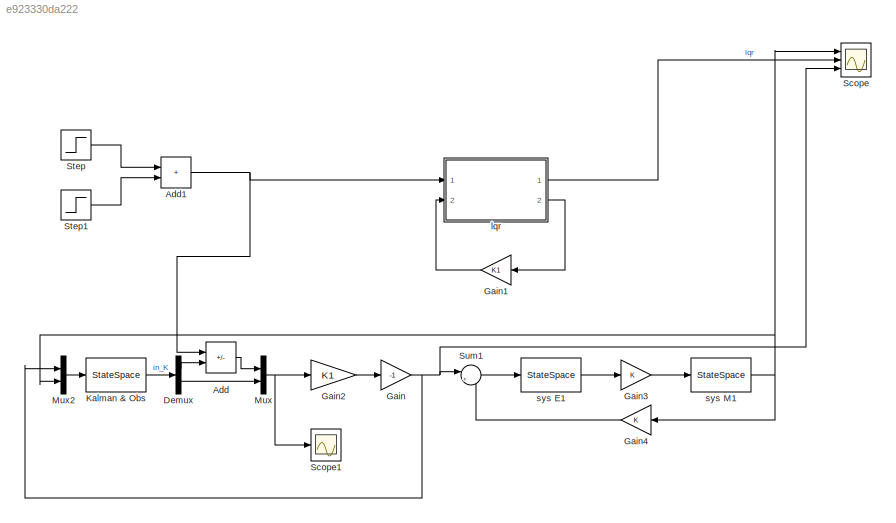
MODEL slx_e923330da222
KIND model
CONFIG AbsTol = auto
CONFIG EnableMultiTasking = off
CONFIG FixedStep = auto
CONFIG MaxStep = auto
CONFIG MinStep = auto
CONFIG RelTol = 1e-3
CONFIG SampleTimeConstraint = Unconstrained
CONFIG SolverName = VariableStepAuto
CONFIG StartTime = 0.0
CONFIG StopTime = 30
BLOCK [Sum] Add
  IconShape = rectangular
  Inputs = -+
  Ports = [2, 1]
BLOCK [Sum] Add1
  IconShape = rectangular
  Ports = [2, 1]
BLOCK [Demux] Demux
  Outputs = 2
  Ports = [1, 2]
BLOCK [Gain] Gain
  Gain = -1
BLOCK [Gain] Gain1
  Gain = K1
  Multiplication = Matrix(K*u) (u vector)
  NameLocation = top
BLOCK [Gain] Gain2
  Gain = K1
  Multiplication = Matrix(K*u) (u vector)
BLOCK [Gain] Gain3
BLOCK [Gain] Gain4
  NameLocation = top
BLOCK [StateSpace] Kalman & Obs
  A = sysKF.A
  B = sysKF.B
  C = sysKF.C
  D = sysKF.D
  InitialCondition = 0
  Ports = [1, 1]
BLOCK [Mux] Mux
  DisplayOption = bar
  Inputs = 2
  Ports = [2, 1]
BLOCK [Mux] Mux2
  DisplayOption = bar
  Inputs = 2
  Ports = [2, 1]
BLOCK [Scope] Scope
  Floating = off
  NumInputPorts = 3
  Ports = [3]
  ScopeSpecificationString = Simulink.scopes.TimeScopeBlockCfg('CurrentConfiguration', extmgr.ConfigurationSet(extmgr.Configuration('Core','General UI',true),extmgr.Configuration('Core','Source UI',true),extmgr.Configuration('Sources','WiredSimulink',true),extmgr.Configuration('Visuals','Time Domain',true,'SerializedDisplays',{struct('MinYLimReal','-0.6034','MaxYLimReal','5.4149','YLabelReal','','MinYLimMag','0.00000','MaxYLi...<+1470ch>
BLOCK [Scope] Scope1
  Floating = off
  NumInputPorts = 1
  Ports = [1]
  ScopeSpecificationString = Simulink.scopes.TimeScopeBlockCfg('CurrentConfiguration', extmgr.ConfigurationSet(extmgr.Configuration('Core','General UI',true),extmgr.Configuration('Core','Source UI',true),extmgr.Configuration('Sources','WiredSimulink',true,'DataLoggingVariableName','ScopeData1'),extmgr.Configuration('Visuals','Time Domain',true,'SerializedDisplays',{struct('MinYLimReal','-5.64938','MaxYLimReal','0.83338','YLab...<+1401ch>
BLOCK [Step] Step
  After = 5
  SampleTime = 0
  Time = 0
BLOCK [Step] Step1
  After = -5
  SampleTime = 0
  Time = 5
BLOCK [Sum] Sum1
  Inputs = |+-
  Ports = [2, 1]
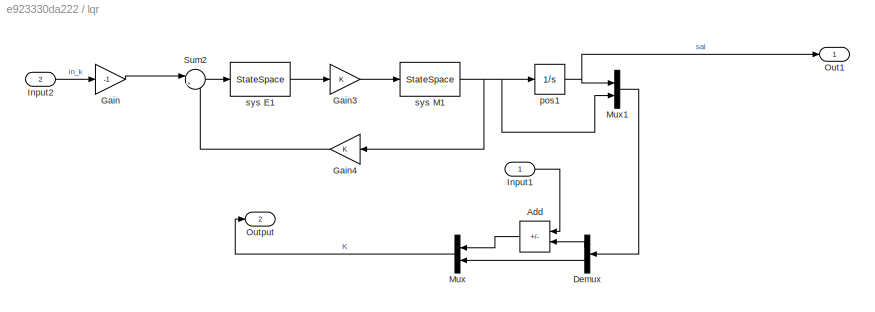
BLOCK [SubSystem] lqr
  Ports = [2, 2]
  RequestExecContextInheritance = off
BLOCK [Sum] lqr/Add
  IconShape = rectangular
  Inputs = -+
  NameLocation = top
  Ports = [2, 1]
BLOCK [Demux] lqr/Demux
  NameLocation = top
  Outputs = 2
  Ports = [1, 2]
BLOCK [Gain] lqr/Gain
  Gain = -1
BLOCK [Gain] lqr/Gain3
BLOCK [Gain] lqr/Gain4
  NameLocation = top
BLOCK [Inport] lqr/Input1
  IconDisplay = Signal name
BLOCK [Inport] lqr/Input2
  IconDisplay = Signal name
  Port = 2
BLOCK [Mux] lqr/Mux
  DisplayOption = bar
  Inputs = 2
  NameLocation = top
  Ports = [2, 1]
BLOCK [Mux] lqr/Mux1
  DisplayOption = bar
  Inputs = 2
  Ports = [2, 1]
BLOCK [Outport] lqr/Out1
  IconDisplay = Signal name
BLOCK [Outport] lqr/Output
  IconDisplay = Signal name
  Port = 2
BLOCK [Sum] lqr/Sum2
  Inputs = |+-
  Ports = [2, 1]
BLOCK [Integrator] lqr/pos1
  Ports = [1, 1]
BLOCK [StateSpace] lqr/sys E1
  A = sysE.A
  B = sysE.B
  C = sysE.C
  D = sysE.D
  InitialCondition = 0
  Ports = [1, 1]
BLOCK [StateSpace] lqr/sys M1
  A = sysM.A
  B = sysM.B
  C = sysM.C
  D = sysM.D
  InitialCondition = 0
  Ports = [1, 1]
BLOCK [StateSpace] sys E1
  A = sysE.A
  B = sysE.B
  C = sysE.C
  D = sysE.D
  InitialCondition = 0
  Ports = [1, 1]
BLOCK [StateSpace] sys M1
  A = sysM.A
  B = sysM.B
  C = sysM.C
  D = sysM.D
  InitialCondition = 0
  Ports = [1, 1]
NET Add1:1 -> Add:1, lqr:1
LINE Add:1 -> Mux:1
LINE Demux:1 -> Add:2
LINE Demux:2 -> Mux:2
LINE Gain1:1 -> lqr:2
LINE Gain2:1 -> Gain:1
LINE Gain3:1 -> sys M1:1
LINE Gain4:1 -> Sum1:2
NET Gain:1 -> Mux2:1, Scope:3, Sum1:1
LINE Kalman & Obs:1 -> Demux:1
LINE Mux2:1 -> Kalman & Obs:1
NET Mux:1 -> Gain2:1, Scope1:1
LINE Step1:1 -> Add1:2
LINE Step:1 -> Add1:1
LINE Sum1:1 -> sys E1:1
LINE lqr/Add:1 -> lqr/Mux:1
LINE lqr/Demux:1 -> lqr/Add:2
LINE lqr/Demux:2 -> lqr/Mux:2
LINE lqr/Gain3:1 -> lqr/sys M1:1
LINE lqr/Gain4:1 -> lqr/Sum2:2
LINE lqr/Gain:1 -> lqr/Sum2:1
LINE lqr/Input1:1 -> lqr/Add:1
LINE lqr/Input2:1 -> lqr/Gain:1
LINE lqr/Mux1:1 -> lqr/Demux:1
LINE lqr/Mux:1 -> lqr/Output:1
LINE lqr/Sum2:1 -> lqr/sys E1:1
NET lqr/pos1:1 -> lqr/Mux1:1, lqr/Out1:1
LINE lqr/sys E1:1 -> lqr/Gain3:1
NET lqr/sys M1:1 -> lqr/Gain4:1, lqr/Mux1:2, lqr/pos1:1
LINE lqr:1 -> Scope:2
LINE lqr:2 -> Gain1:1
LINE sys E1:1 -> Gain3:1
NET sys M1:1 -> Gain4:1, Mux2:2, Scope:1
note: NET lines group one-source signal fan-out (src -> all destinations, sorted); 1:1 wires keep LINE
